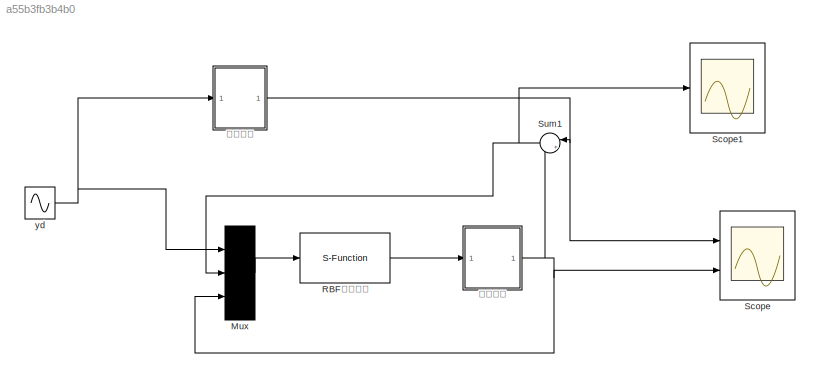
MODEL slx_a55b3fb3b4b0
KIND model
CONFIG AbsTol = auto
CONFIG EnableMultiTasking = off
CONFIG FixedStep = 0.001
CONFIG MaxStep = auto
CONFIG MinStep = auto
CONFIG RelTol = 1e-3
CONFIG SampleTimeConstraint = Unconstrained
CONFIG Solver = ode4
CONFIG SolverName = ode4
CONFIG StartTime = 0.001
CONFIG StopTime = 3
BLOCK [Mux] Mux
  DisplayOption = bar
  Inputs = 3
  Ports = [3, 1]
BLOCK [S-Function] RBF神经网络
  EnableBusSupport = off
  FunctionName = Book321_controller
  Ports = [1, 1]
  SFcnIsStateOwnerBlock = off
  SFunctionDeploymentMode = off
BLOCK [Scope] Scope
  Floating = off
  NumInputPorts = 2
  Ports = [2]
  ScopeSpecificationString = Simulink.scopes.TimeScopeBlockCfg('CurrentConfiguration', extmgr.ConfigurationSet(extmgr.Configuration('Core','General UI',true,'FigureColor',[1 1 1]),extmgr.Configuration('Core','Source UI',true),extmgr.Configuration('Sources','WiredSimulink',true),extmgr.Configuration('Visuals','Time Domain',true,'SerializedDisplays',{struct('MinYLimReal','-1.56238','MaxYLimReal','1.56238','YLabelReal','','MinYL...<+1519ch>
BLOCK [Scope] Scope1
  Floating = off
  NumInputPorts = 1
  Ports = [1]
  ScopeSpecificationString = Simulink.scopes.TimeScopeBlockCfg('CurrentConfiguration', extmgr.ConfigurationSet(extmgr.Configuration('Core','General UI',true,'FigureColor',[1 1 1]),extmgr.Configuration('Core','Source UI',true),extmgr.Configuration('Sources','WiredSimulink',true,'DataLoggingVariableName','ScopeData1'),extmgr.Configuration('Visuals','Time Domain',true,'SerializedDisplays',{struct('MinYLimReal','-0.32991','MaxYLi...<+1550ch>
BLOCK [Sum] Sum1
  IconShape = round
  InputSameDT = off
  Inputs = |+-
  OutDataTypeStr = Inherit: Inherit via internal rule
  Ports = [2, 1]
  SaturateOnIntegerOverflow = off
BLOCK [Sin] yd
  Amplitude = 0.5
  Frequency = pi*2
  Ports = [0, 1]
  SampleTime = 0
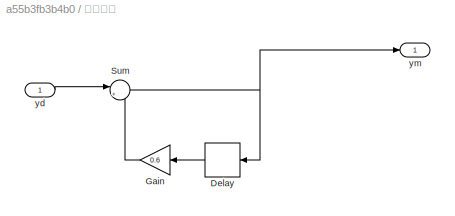
BLOCK [SubSystem] 参考模型
  Ports = [1, 1]
  RequestExecContextInheritance = off
BLOCK [Delay] 参考模型/Delay
  DelayLength = 1
  InputPortMap = u0
  Ports = [1, 1]
BLOCK [Gain] 参考模型/Gain
  Gain = 0.6
  OutDataTypeStr = Inherit: Inherit via internal rule
  ParamDataTypeStr = Inherit: Inherit via internal rule
  SaturateOnIntegerOverflow = off
BLOCK [Sum] 参考模型/Sum
  IconShape = round
  InputSameDT = off
  Inputs = |++
  OutDataTypeStr = Inherit: Inherit via internal rule
  Ports = [2, 1]
  SaturateOnIntegerOverflow = off
BLOCK [Inport] 参考模型/yd
  IconDisplay = Port number
BLOCK [Outport] 参考模型/ym
  IconDisplay = Port number
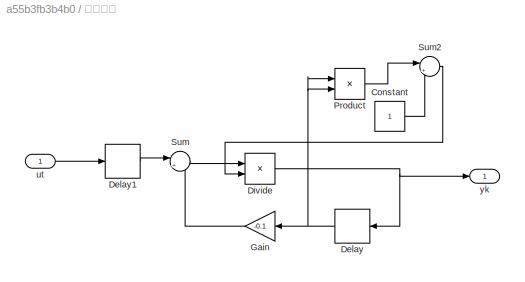
BLOCK [SubSystem] 被控对象
  Ports = [1, 1]
  RequestExecContextInheritance = off
BLOCK [Constant] 被控对象/Constant
BLOCK [Delay] 被控对象/Delay
  DelayLength = 1
  InputPortMap = u0
  Ports = [1, 1]
BLOCK [Delay] 被控对象/Delay1
  DelayLength = 1
  InputPortMap = u0
  Ports = [1, 1]
BLOCK [Product] 被控对象/Divide
  InputSameDT = off
  Inputs = */
  OutDataTypeStr = Inherit: Inherit via internal rule
  Ports = [2, 1]
  RndMeth = Floor
  SaturateOnIntegerOverflow = off
BLOCK [Gain] 被控对象/Gain
  Gain = -0.1
  OutDataTypeStr = Inherit: Inherit via internal rule
  ParamDataTypeStr = Inherit: Inherit via internal rule
  SaturateOnIntegerOverflow = off
BLOCK [Product] 被控对象/Product
  InputSameDT = off
  OutDataTypeStr = Inherit: Inherit via internal rule
  Ports = [2, 1]
  RndMeth = Floor
  SaturateOnIntegerOverflow = off
BLOCK [Sum] 被控对象/Sum
  IconShape = round
  InputSameDT = off
  Inputs = |++
  OutDataTypeStr = Inherit: Inherit via internal rule
  Ports = [2, 1]
  SaturateOnIntegerOverflow = off
BLOCK [Sum] 被控对象/Sum2
  IconShape = round
  InputSameDT = off
  Inputs = |++
  OutDataTypeStr = Inherit: Inherit via internal rule
  Ports = [2, 1]
  SaturateOnIntegerOverflow = off
BLOCK [Inport] 被控对象/ut
  IconDisplay = Port number
BLOCK [Outport] 被控对象/yk
  IconDisplay = Port number
LINE Mux:1 -> RBF神经网络:1
LINE RBF神经网络:1 -> 被控对象:1
NET Sum1:1 -> Mux:2, Scope1:1
NET yd:1 -> Mux:1, 参考模型:1
LINE 参考模型/Delay:1 -> 参考模型/Gain:1
LINE 参考模型/Gain:1 -> 参考模型/Sum:2
NET 参考模型/Sum:1 -> 参考模型/Delay:1, 参考模型/ym:1
LINE 参考模型/yd:1 -> 参考模型/Sum:1
NET 参考模型:1 -> Scope:1, Sum1:1
LINE 被控对象/Constant:1 -> 被控对象/Sum2:2
LINE 被控对象/Delay1:1 -> 被控对象/Sum:1
NET 被控对象/Delay:1 -> 被控对象/Gain:1, 被控对象/Product:1, 被控对象/Product:2
NET 被控对象/Divide:1 -> 被控对象/Delay:1, 被控对象/yk:1
LINE 被控对象/Gain:1 -> 被控对象/Sum:2
LINE 被控对象/Product:1 -> 被控对象/Sum2:1
LINE 被控对象/Sum2:1 -> 被控对象/Divide:2
LINE 被控对象/Sum:1 -> 被控对象/Divide:1
LINE 被控对象/ut:1 -> 被控对象/Delay1:1
NET 被控对象:1 -> Mux:3, Scope:2, Sum1:2
note: NET lines group one-source signal fan-out (src -> all destinations, sorted); 1:1 wires keep LINE
